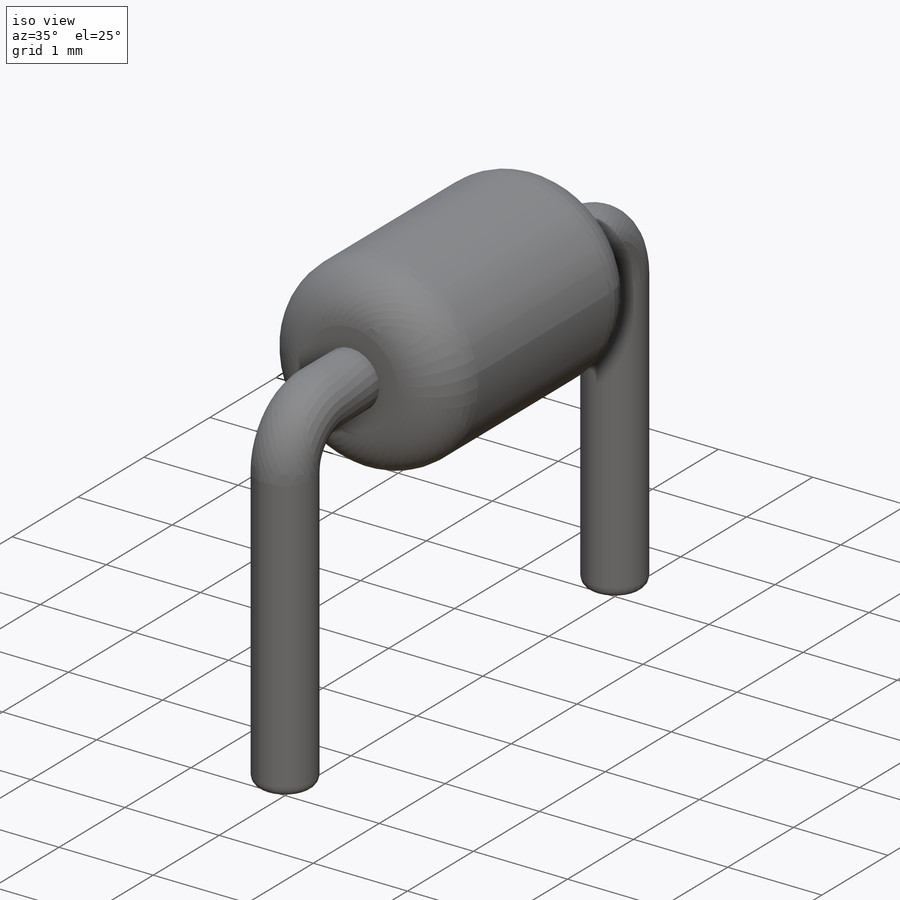
[diagram: iso view]
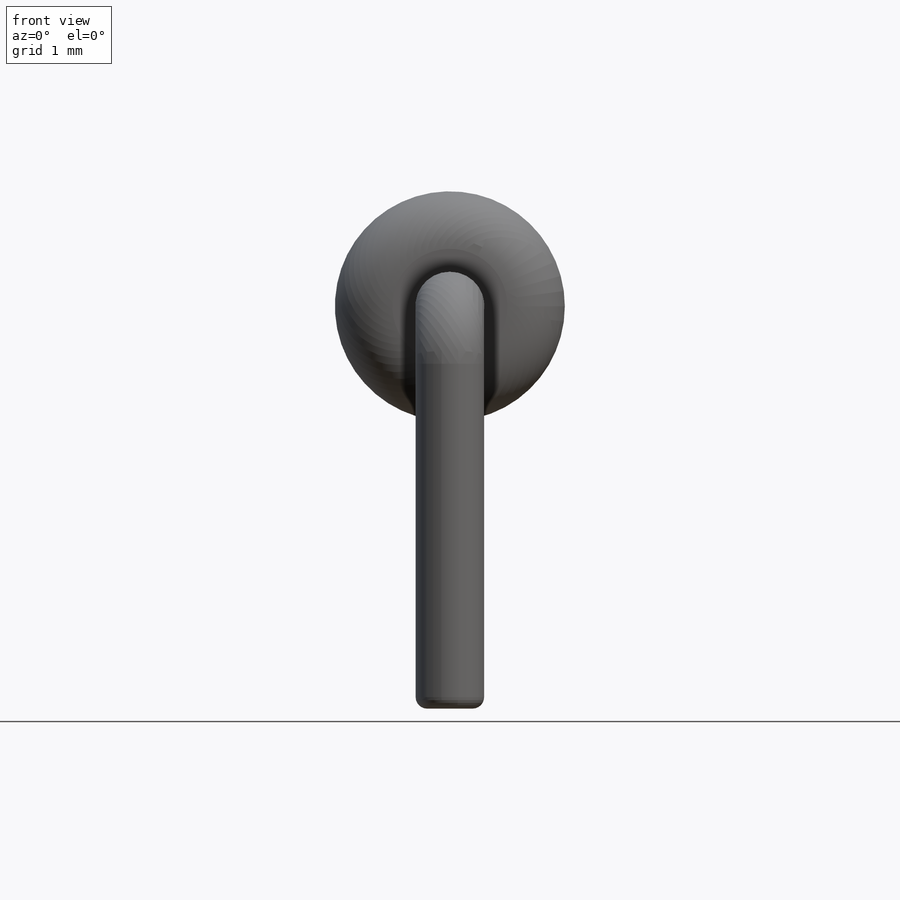
[diagram: front view]
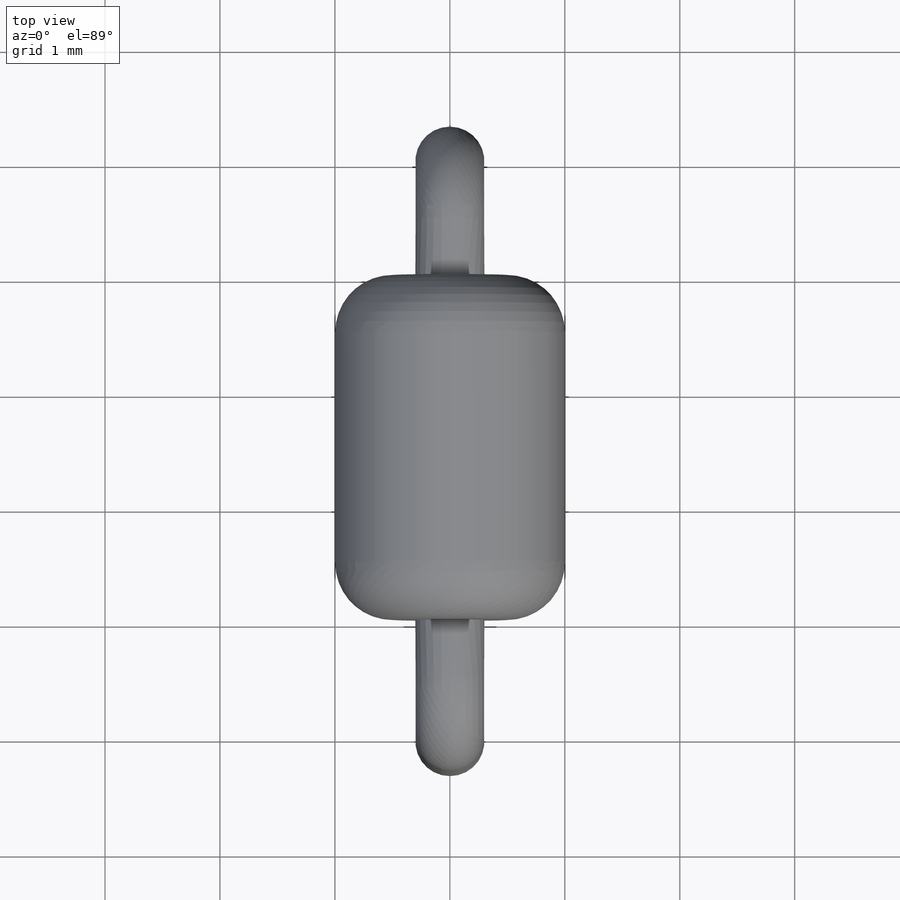
[diagram: top view]
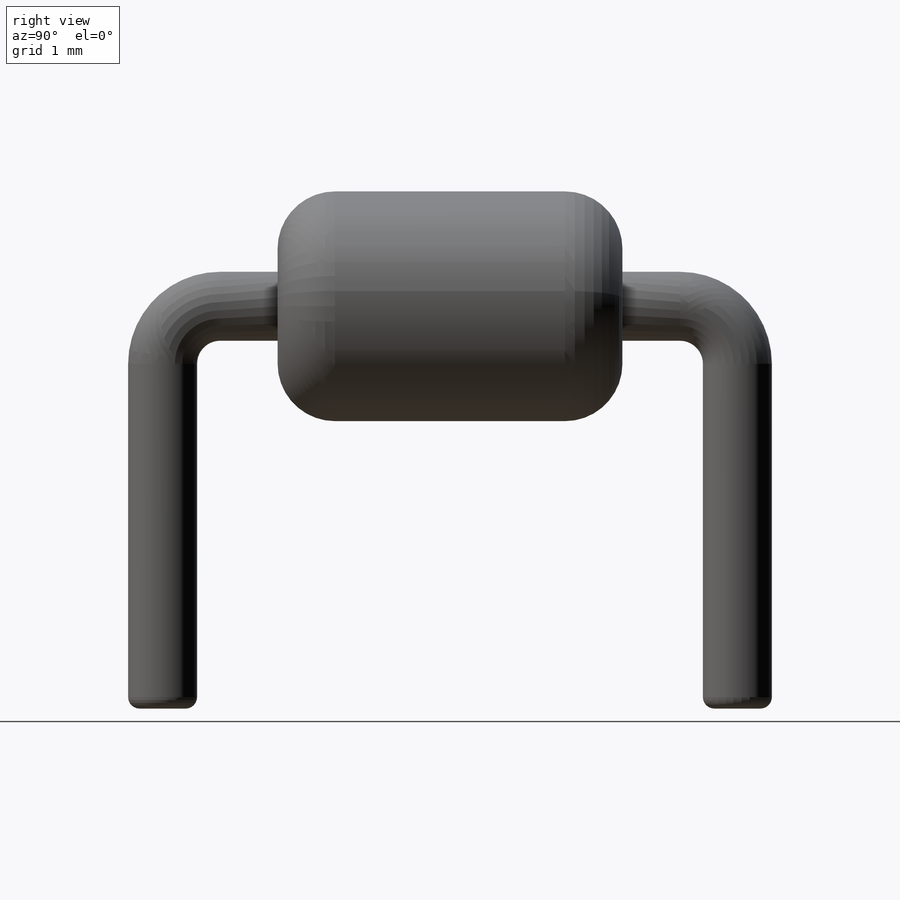
[diagram: right view]
SOLIDWORKS PART (.sldprt)
format: sldprt  version: not decoded by parser v0  size: 211,968 bytes
history: native  units: mm
features: plane x4, sketch x3, fillet x2, material x1, sweep x1, extrude x1 (+10 scaffold rows collapsed)
feature tree (22):
  scaffold x10  (default folders/planes/origin — collapsed)
  material  "Material <not specified>"
  plane  "Ön Düzlem"
  plane  "Üst Düzlem"
  plane  "Sağ Düzlem"
  sketch  "Sketch2"  dims[D4=1.0mm D5=1.0mm D1=5.0mm D2=3.0mm D3=3.0mm]
  sketch  "Sketch3"  dims[D1=0.6mm]
  sweep  "Sweep1"
  plane  "Plane1"  Offset=1mm
  sketch  "Sketch4"  dims[D1=2.0mm D2=0.6mm]
  extrude  "Boss-Extrude2"  Depth=3mm
  fillet  "Fillet1"  Radius=0.5mm
  fillet  "Fillet2"  Radius=0.1mm
decode coverage: 6 of 7 modeling features carry decoded parameters
note: suppression state not decoded; provenance and decode notes live in map.json
